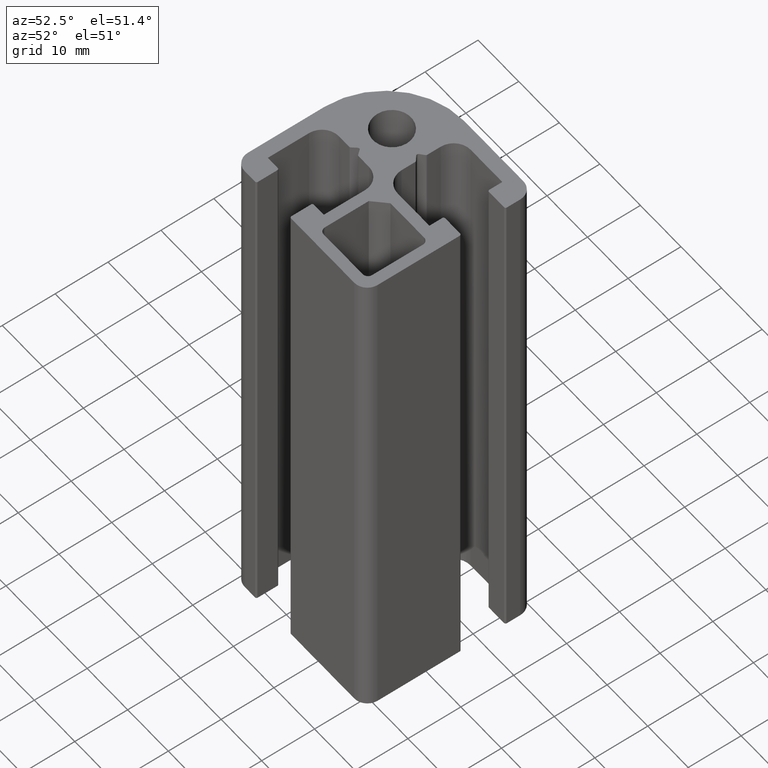
[diagram: clean part render]
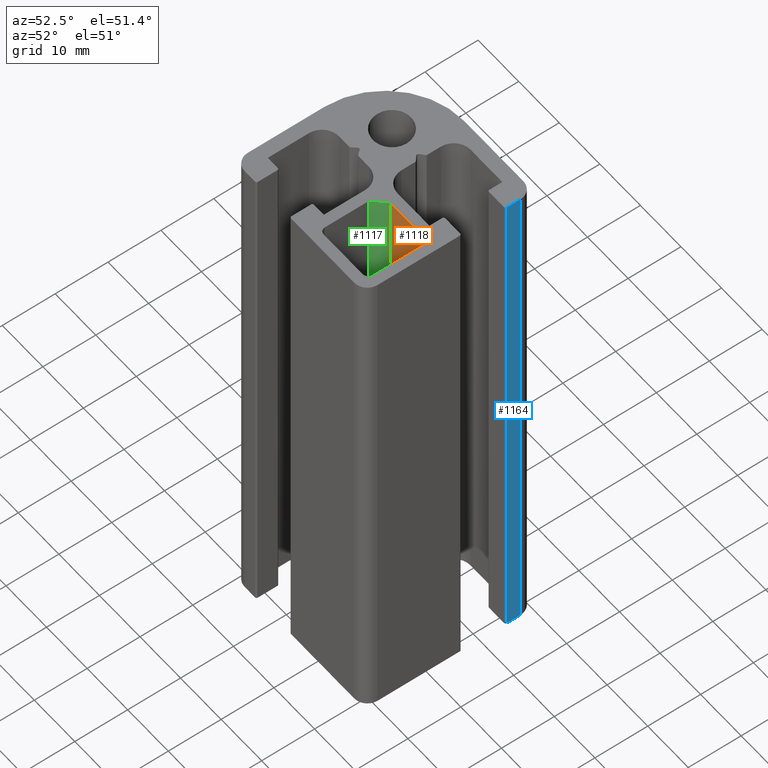
[diagram: same view with three faces highlighted in distinct colors, each labeled with its STEP entity id]
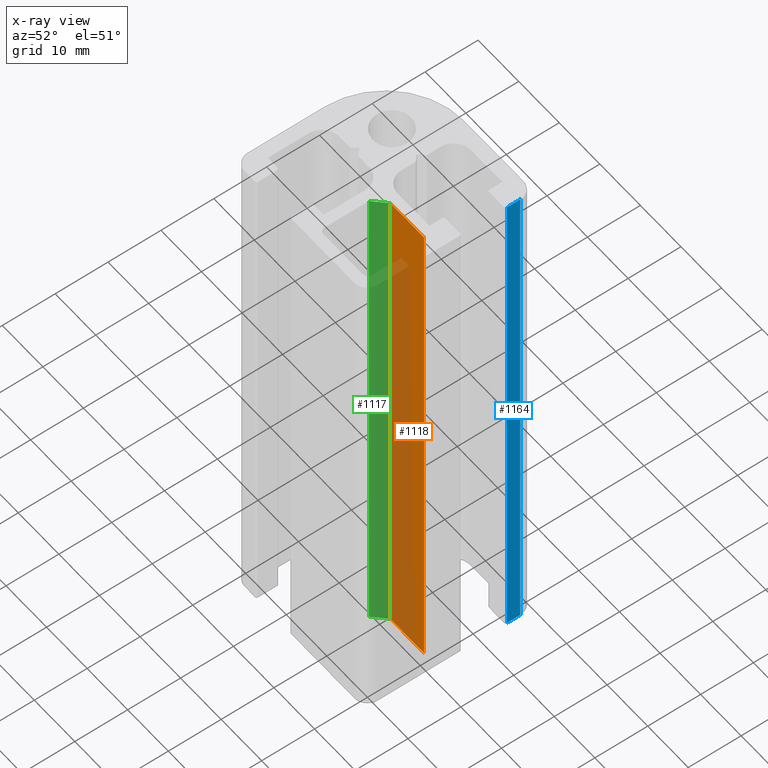
[diagram: x-ray of the same camera — body ghosted, the three highlighted faces saturated]
A machine part, auxiliary view with three faces highlighted in distinct colors.
The next image is the same camera in x-ray (body ghosted, the three faces saturated) — at least one of them is partly hidden behind the body in this view.
Their STEP definitions:

[orange] entity #1118 — the highlighted planar face has unit normal (-0, 1, 0).
#17=PLANE('',#1183);
#55=LINE('',#1654,#173);
#56=LINE('',#1657,#174);
#57=LINE('',#1659,#175);
#58=LINE('',#1660,#176);
#173=VECTOR('',#1311,100.);
#174=VECTOR('',#1314,8.26653849340351);
#175=VECTOR('',#1315,8.26653849340351);
#176=VECTOR('',#1316,100.);
#293=FACE_OUTER_BOUND('',#353,.T.);
#353=EDGE_LOOP('',(#762,#763,#764,#765));
#472=VERTEX_POINT('',#1650);
#473=VERTEX_POINT('',#1652);
#474=VERTEX_POINT('',#1656);
#475=VERTEX_POINT('',#1658);
#589=EDGE_CURVE('',#473,#472,#55,.T.);
#590=EDGE_CURVE('',#472,#474,#56,.T.);
#591=EDGE_CURVE('',#475,#473,#57,.T.);
#592=EDGE_CURVE('',#475,#474,#58,.T.);
#762=ORIENTED_EDGE('',*,*,#590,.F.);
#763=ORIENTED_EDGE('',*,*,#589,.F.);
#764=ORIENTED_EDGE('',*,*,#591,.F.);
#765=ORIENTED_EDGE('',*,*,#592,.T.);
#1118=ADVANCED_FACE('',(#293),#17,.F.);
#1183=AXIS2_PLACEMENT_3D('',#1655,#1312,#1313);
#1311=DIRECTION('',(0.,0.,1.));
#1312=DIRECTION('center_axis',(-4.0290976404855E-16,1.,0.));
#1313=DIRECTION('ref_axis',(-1.,-3.5527136788005E-16,0.));
#1314=DIRECTION('',(1.,4.0290976404855E-16,0.));
#1315=DIRECTION('',(-1.,-4.0290976404855E-16,0.));
#1316=DIRECTION('',(0.,0.,1.));
#1650=CARTESIAN_POINT('',(11.2334615000005,-8.9,100.));
#1652=CARTESIAN_POINT('',(11.2334615000005,-8.9,0.));
#1654=CARTESIAN_POINT('',(11.2334615000005,-8.9,0.));
#1655=CARTESIAN_POINT('Origin',(19.499999993404,-8.9,0.));
#1656=CARTESIAN_POINT('',(19.499999993404,-8.9,100.));
#1657=CARTESIAN_POINT('',(12.999999996702,-8.9,100.));
#1658=CARTESIAN_POINT('',(19.499999993404,-8.9,0.));
#1659=CARTESIAN_POINT('',(12.999999996702,-8.9,0.));
#1660=CARTESIAN_POINT('',(19.499999993404,-8.9,0.));

[blue] entity #1164 — the highlighted planar face has unit normal (1, 0, 0).
#42=PLANE('',#1271);
#144=LINE('',#1915,#262);
#154=LINE('',#1939,#272);
#155=LINE('',#1941,#273);
#156=LINE('',#1942,#274);
#262=VECTOR('',#1564,100.);
#272=VECTOR('',#1588,2.55000000000061);
#273=VECTOR('',#1589,100.);
#274=VECTOR('',#1590,2.55000000000061);
#339=FACE_OUTER_BOUND('',#399,.T.);
#399=EDGE_LOOP('',(#946,#947,#948,#949));
#561=VERTEX_POINT('',#1909);
#563=VERTEX_POINT('',#1913);
#570=VERTEX_POINT('',#1938);
#571=VERTEX_POINT('',#1940);
#718=EDGE_CURVE('',#561,#563,#144,.T.);
#730=EDGE_CURVE('',#570,#563,#154,.T.);
#731=EDGE_CURVE('',#570,#571,#155,.T.);
#732=EDGE_CURVE('',#571,#561,#156,.T.);
#946=ORIENTED_EDGE('',*,*,#718,.T.);
#947=ORIENTED_EDGE('',*,*,#730,.F.);
#948=ORIENTED_EDGE('',*,*,#731,.T.);
#949=ORIENTED_EDGE('',*,*,#732,.T.);
#1164=ADVANCED_FACE('',(#339),#42,.T.);
#1271=AXIS2_PLACEMENT_3D('',#1937,#1586,#1587);
#1564=DIRECTION('',(0.,0.,-1.));
#1586=DIRECTION('center_axis',(1.,1.64477485129653E-16,0.));
#1587=DIRECTION('ref_axis',(0.,1.,0.));
#1588=DIRECTION('',(1.64477485129653E-16,-1.,0.));
#1589=DIRECTION('',(0.,0.,1.));
#1590=DIRECTION('',(1.64477485129653E-16,-1.,0.));
#1909=CARTESIAN_POINT('',(22.5,4.4499999999994,100.));
#1913=CARTESIAN_POINT('',(22.5,4.4499999999994,0.));
#1915=CARTESIAN_POINT('',(22.5,4.44999999999941,0.));
#1937=CARTESIAN_POINT('Origin',(22.5,-20.,0.));
#1938=CARTESIAN_POINT('',(22.5,7.,0.));
#1939=CARTESIAN_POINT('',(22.5,-13.25,0.));
#1940=CARTESIAN_POINT('',(22.5,7.,100.));
#1941=CARTESIAN_POINT('',(22.5,7.,0.));
#1942=CARTESIAN_POINT('',(22.5,-13.25,100.));

[green] entity #1117 — the highlighted planar face has unit normal (-0.7071, 0.7071, 0).
#16=PLANE('',#1182);
#52=LINE('',#1648,#170);
#53=LINE('',#1651,#171);
#54=LINE('',#1653,#172);
#55=LINE('',#1654,#173);
#170=VECTOR('',#1306,100.);
#171=VECTOR('',#1309,3.30001290057615);
#172=VECTOR('',#1310,3.30001290057615);
#173=VECTOR('',#1311,100.);
#292=FACE_OUTER_BOUND('',#352,.T.);
#352=EDGE_LOOP('',(#758,#759,#760,#761));
#470=VERTEX_POINT('',#1644);
#471=VERTEX_POINT('',#1646);
#472=VERTEX_POINT('',#1650);
#473=VERTEX_POINT('',#1652);
#586=EDGE_CURVE('',#471,#470,#52,.T.);
#587=EDGE_CURVE('',#470,#472,#53,.T.);
#588=EDGE_CURVE('',#473,#471,#54,.T.);
#589=EDGE_CURVE('',#473,#472,#55,.T.);
#758=ORIENTED_EDGE('',*,*,#587,.F.);
#759=ORIENTED_EDGE('',*,*,#586,.F.);
#760=ORIENTED_EDGE('',*,*,#588,.F.);
#761=ORIENTED_EDGE('',*,*,#589,.T.);
#1117=ADVANCED_FACE('',(#292),#16,.F.);
#1182=AXIS2_PLACEMENT_3D('',#1649,#1307,#1308);
#1306=DIRECTION('',(0.,0.,1.));
#1307=DIRECTION('center_axis',(-0.707106781186548,0.707106781186548,0.));
#1308=DIRECTION('ref_axis',(-0.707106781186548,-0.707106781186548,0.));
#1309=DIRECTION('',(0.707106781186547,0.707106781186547,0.));
#1310=DIRECTION('',(-0.707106781186547,-0.707106781186547,0.));
#1311=DIRECTION('',(0.,0.,1.));
#1644=CARTESIAN_POINT('',(8.89999999999999,-11.2334615000005,100.));
#1646=CARTESIAN_POINT('',(8.89999999999999,-11.2334615000005,0.));
#1648=CARTESIAN_POINT('',(8.89999999999999,-11.2334615000005,0.));
#1649=CARTESIAN_POINT('Origin',(11.2334615000005,-8.9,0.));
#1650=CARTESIAN_POINT('',(11.2334615000005,-8.9,100.));
#1651=CARTESIAN_POINT('',(10.6500961250004,-9.48336537500012,100.));
#1652=CARTESIAN_POINT('',(11.2334615000005,-8.9,0.));
#1653=CARTESIAN_POINT('',(10.6500961250004,-9.48336537500012,0.));
#1654=CARTESIAN_POINT('',(11.2334615000005,-8.9,0.));